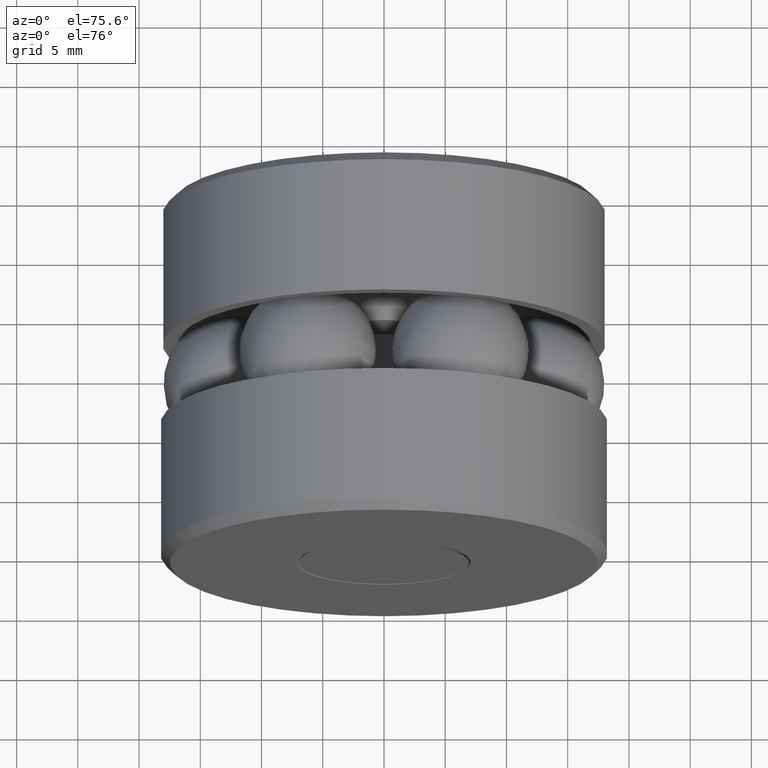
[diagram: clean part render]
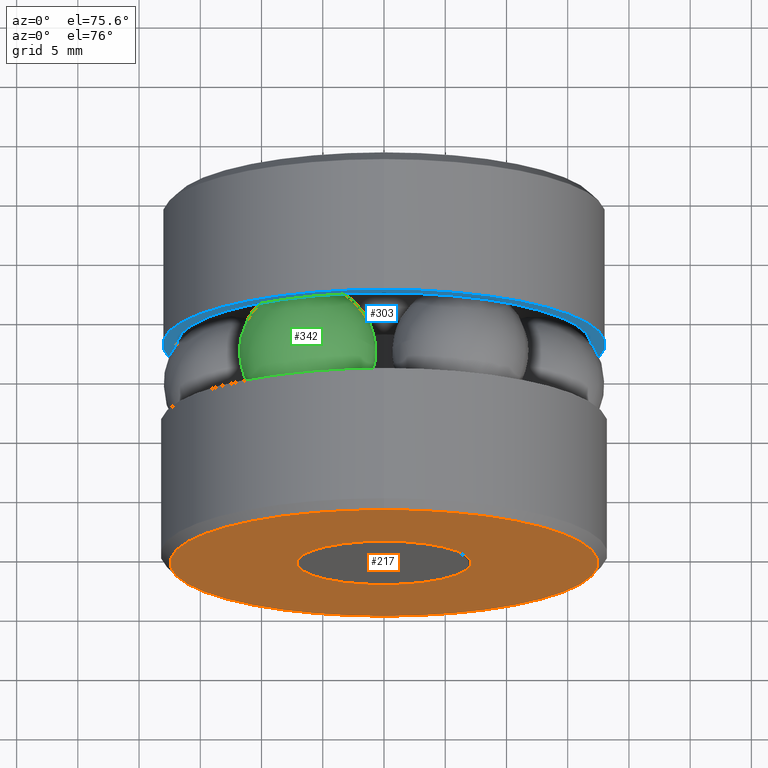
[diagram: same view with three faces highlighted in distinct colors, each labeled with its STEP entity id]
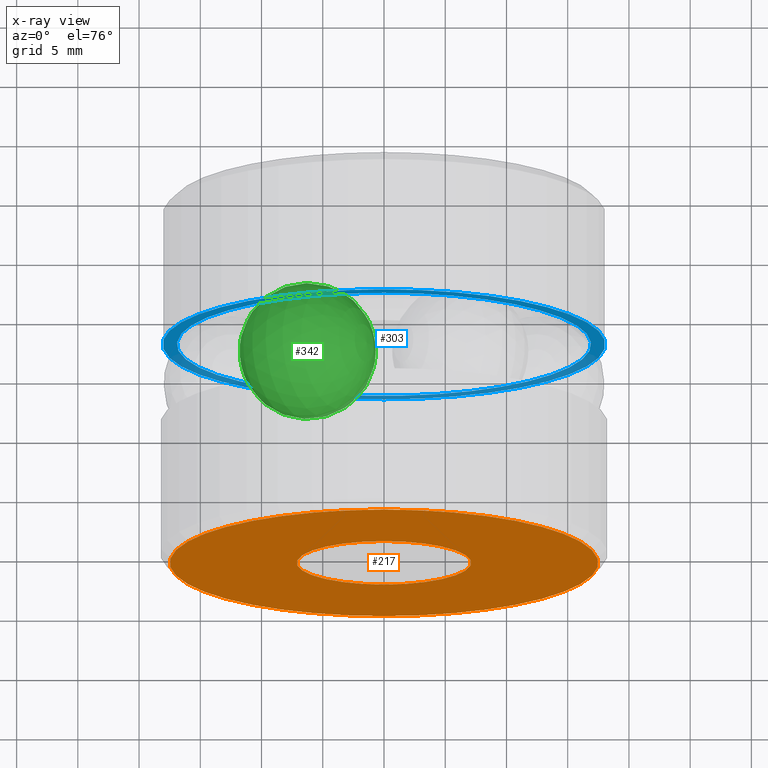
[diagram: x-ray of the same camera — body ghosted, the three highlighted faces saturated]
A machine part, auxiliary view with three faces highlighted in distinct colors.
The next image is the same camera in x-ray (body ghosted, the three faces saturated) — at least one of them is partly hidden behind the body in this view.
Their STEP definitions:

[orange] entity #217 — the highlighted planar face has unit normal (0, -1, 0).
#34 = EDGE_LOOP ( 'NONE', ( #511 ) ) ;
#85 = DIRECTION ( 'NONE',  ( -0.0000000000000000000, 1.000000000000000000, -0.0000000000000000000 ) ) ;
#108 = EDGE_CURVE ( 'NONE', #132, #132, #449, .T. ) ;
#117 = CARTESIAN_POINT ( 'NONE',  ( -0.2805085678118639500, -4.784046474346937400E-017, 0.0000000000000000000 ) ) ;
#121 = DIRECTION ( 'NONE',  ( 0.0000000000000000000, -1.000000000000000000, 0.0000000000000000000 ) ) ;
#132 = VERTEX_POINT ( 'NONE', #525 ) ;
#136 = PLANE ( 'NONE',  #512 ) ;
#164 = DIRECTION ( 'NONE',  ( -0.0000000000000000000, 1.000000000000000000, -0.0000000000000000000 ) ) ;
#217 = ADVANCED_FACE ( 'NONE', ( #421, #408 ), #136, .T. ) ;
#227 = VERTEX_POINT ( 'NONE', #396 ) ;
#236 = AXIS2_PLACEMENT_3D ( 'NONE', #337, #164, #419 ) ;
#244 = AXIS2_PLACEMENT_3D ( 'NONE', #331, #85, #368 ) ;
#269 = DIRECTION ( 'NONE',  ( 0.0000000000000000000, -0.0000000000000000000, -1.000000000000000000 ) ) ;
#280 = ORIENTED_EDGE ( 'NONE', *, *, #316, .T. ) ;
#316 = EDGE_CURVE ( 'NONE', #227, #227, #350, .T. ) ;
#331 = CARTESIAN_POINT ( 'NONE',  ( 0.0000000000000000000, -1.119366217046053200E-017, 0.0000000000000000000 ) ) ;
#337 = CARTESIAN_POINT ( 'NONE',  ( 0.0000000000000000000, -8.448726731647822000E-017, 0.0000000000000000000 ) ) ;
#350 = CIRCLE ( 'NONE', #244, 0.2805085678118639500 ) ;
#368 = DIRECTION ( 'NONE',  ( 0.0000000000000000000, 0.0000000000000000000, 1.000000000000000000 ) ) ;
#396 = CARTESIAN_POINT ( 'NONE',  ( 0.0000000000000000000, -1.119366217046053200E-017, 0.2805085678118639500 ) ) ;
#408 = FACE_OUTER_BOUND ( 'NONE', #34, .T. ) ;
#419 = DIRECTION ( 'NONE',  ( 0.0000000000000000000, 0.0000000000000000000, 1.000000000000000000 ) ) ;
#421 = FACE_BOUND ( 'NONE', #528, .T. ) ;
#449 = CIRCLE ( 'NONE', #236, 0.6887499999999998600 ) ;
#511 = ORIENTED_EDGE ( 'NONE', *, *, #108, .F. ) ;
#512 = AXIS2_PLACEMENT_3D ( 'NONE', #117, #121, #269 ) ;
#525 = CARTESIAN_POINT ( 'NONE',  ( 0.0000000000000000000, -8.448726731647822000E-017, 0.6887499999999998600 ) ) ;
#528 = EDGE_LOOP ( 'NONE', ( #280 ) ) ;

[blue] entity #303 — the highlighted planar face has unit normal (0, -1, 0).
#9 = DIRECTION ( 'NONE',  ( -0.0000000000000000000, 1.000000000000000000, -0.0000000000000000000 ) ) ;
#10 = CARTESIAN_POINT ( 'NONE',  ( 0.0000000000000000000, 0.7251500000000001800, 0.0000000000000000000 ) ) ;
#13 = AXIS2_PLACEMENT_3D ( 'NONE', #412, #126, #59 ) ;
#59 = DIRECTION ( 'NONE',  ( 0.0000000000000000000, 0.0000000000000000000, 1.000000000000000000 ) ) ;
#61 = DIRECTION ( 'NONE',  ( 0.0000000000000000000, 0.0000000000000000000, 1.000000000000000000 ) ) ;
#84 = EDGE_CURVE ( 'NONE', #367, #367, #162, .T. ) ;
#88 = FACE_OUTER_BOUND ( 'NONE', #295, .T. ) ;
#115 = VERTEX_POINT ( 'NONE', #471 ) ;
#126 = DIRECTION ( 'NONE',  ( -0.0000000000000000000, 1.000000000000000000, -0.0000000000000000000 ) ) ;
#138 = CIRCLE ( 'NONE', #452, 0.6659499999999999300 ) ;
#162 = CIRCLE ( 'NONE', #13, 0.7117499999999999900 ) ;
#170 = EDGE_CURVE ( 'NONE', #115, #115, #138, .T. ) ;
#186 = PLANE ( 'NONE',  #216 ) ;
#216 = AXIS2_PLACEMENT_3D ( 'NONE', #545, #305, #531 ) ;
#226 = ORIENTED_EDGE ( 'NONE', *, *, #170, .T. ) ;
#295 = EDGE_LOOP ( 'NONE', ( #513 ) ) ;
#303 = ADVANCED_FACE ( 'NONE', ( #392, #88 ), #186, .T. ) ;
#305 = DIRECTION ( 'NONE',  ( 0.0000000000000000000, -1.000000000000000000, 0.0000000000000000000 ) ) ;
#367 = VERTEX_POINT ( 'NONE', #493 ) ;
#392 = FACE_BOUND ( 'NONE', #509, .T. ) ;
#412 = CARTESIAN_POINT ( 'NONE',  ( 0.0000000000000000000, 0.7251500000000000700, 0.0000000000000000000 ) ) ;
#452 = AXIS2_PLACEMENT_3D ( 'NONE', #10, #9, #61 ) ;
#471 = CARTESIAN_POINT ( 'NONE',  ( 0.0000000000000000000, 0.7251500000000001800, 0.6659499999999999300 ) ) ;
#493 = CARTESIAN_POINT ( 'NONE',  ( 0.0000000000000000000, 0.7251500000000000700, 0.7117499999999999900 ) ) ;
#509 = EDGE_LOOP ( 'NONE', ( #226 ) ) ;
#513 = ORIENTED_EDGE ( 'NONE', *, *, #84, .F. ) ;
#531 = DIRECTION ( 'NONE',  ( 0.0000000000000000000, -0.0000000000000000000, -1.000000000000000000 ) ) ;
#545 = CARTESIAN_POINT ( 'NONE',  ( -0.7117499999999999900, 0.7251500000000000700, 0.0000000000000000000 ) ) ;

[green] entity #342 — the highlighted spherical surface has radius 5.5626 mm.
#235 = DIRECTION ( 'NONE',  ( -0.8660254037844399300, 0.0000000000000000000, -0.4999999999999979500 ) ) ;
#237 = CARTESIAN_POINT ( 'NONE',  ( -0.2453749999999989800, 0.5937500000000000000, 0.4250019669072138100 ) ) ;
#342 = ADVANCED_FACE ( 'NONE', ( ), #344, .T. ) ;
#344 = SPHERICAL_SURFACE ( 'NONE', #407, 0.2190000000000000300 ) ;
#397 = DIRECTION ( 'NONE',  ( 0.4999999999999979500, 0.0000000000000000000, -0.8660254037844399300 ) ) ;
#407 = AXIS2_PLACEMENT_3D ( 'NONE', #237, #235, #397 ) ;